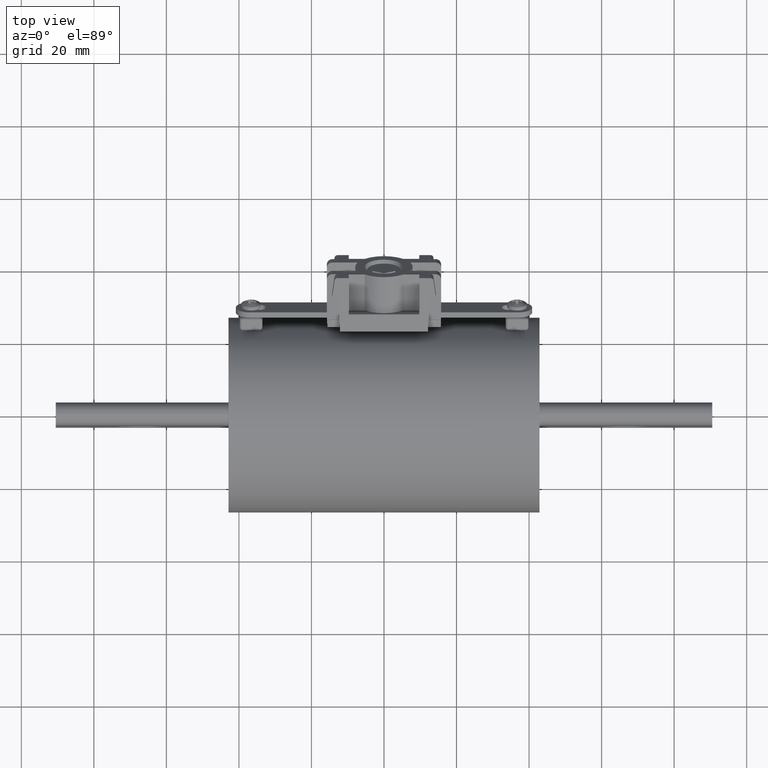
[diagram: clean part render]
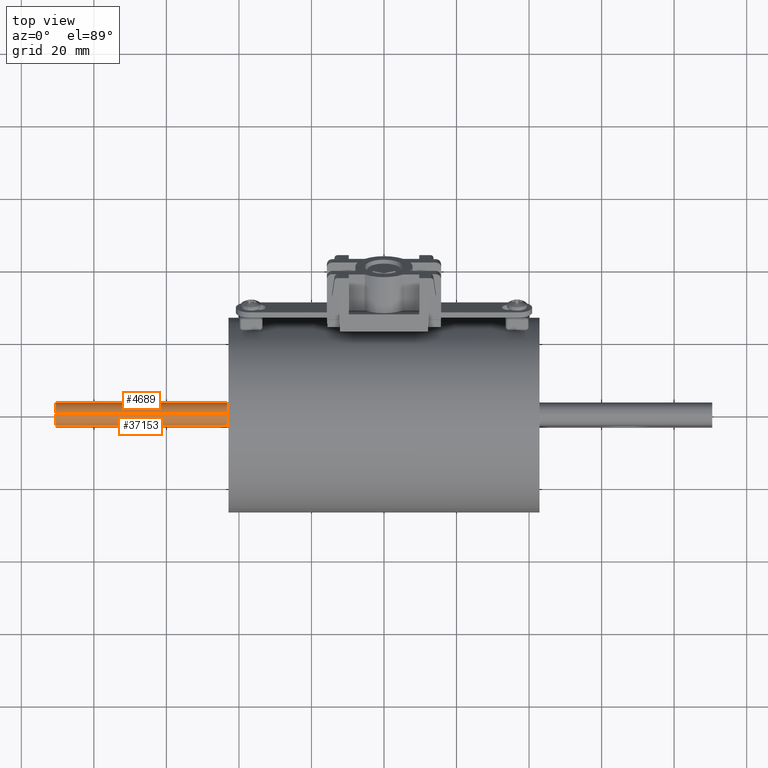
[diagram: same view with one multi-face feature highlighted, each face labeled with its STEP entity id]
A machine part, top view. The highlighted faces form ONE feature: a constant-radius fillet chain: 2 tangent blend faces with common blend radius 3.175 mm. The faces share edges in the B-rep.
Their STEP definitions:
[1] entity #4689 (Cylinder):
#1076 = EDGE_CURVE ( 'NONE', #24107, #13999, #19981, .T. ) ;
#1146 = FACE_OUTER_BOUND ( 'NONE', #10984, .T. ) ;
#2619 = VECTOR ( 'NONE', #30728, 39.37007874015748100 ) ;
#4689 = ADVANCED_FACE ( 'NONE', ( #1146 ), #29141, .T. ) ;
#5760 = CARTESIAN_POINT ( 'NONE',  ( -3.562500000000000000, -1.214542904205320800E-016, 0.6874999999999990000 ) ) ;
#7061 = CARTESIAN_POINT ( 'NONE',  ( -3.562500000000000000, -1.214542904205320800E-016, 0.8124999999999990000 ) ) ;
#7563 = CIRCLE ( 'NONE', #29083, 0.1250000000000000000 ) ;
#8238 = DIRECTION ( 'NONE',  ( 1.000000000000000000, -1.190086841554902200E-017, 1.160211756283973200E-016 ) ) ;
#8290 = AXIS2_PLACEMENT_3D ( 'NONE', #5760, #17113, #39814 ) ;
#9882 = EDGE_CURVE ( 'NONE', #13999, #13333, #38259, .T. ) ;
#10984 = EDGE_LOOP ( 'NONE', ( #12993, #34528, #30290, #39913 ) ) ;
#12709 = CARTESIAN_POINT ( 'NONE',  ( -1.562500000000000000, -1.452560272516301400E-016, 0.8125000000000000000 ) ) ;
#12993 = ORIENTED_EDGE ( 'NONE', *, *, #1076, .F. ) ;
#13333 = VERTEX_POINT ( 'NONE', #38377 ) ;
#13999 = VERTEX_POINT ( 'NONE', #16949 ) ;
#14133 = AXIS2_PLACEMENT_3D ( 'NONE', #36540, #34086, #34184 ) ;
#16949 = CARTESIAN_POINT ( 'NONE',  ( -3.562500000000000000, 0.1249999999999998800, 0.6874999999999991100 ) ) ;
#17113 = DIRECTION ( 'NONE',  ( -1.000000000000000000, 1.190086841554902200E-017, -1.160211756283973200E-016 ) ) ;
#17482 = EDGE_CURVE ( 'NONE', #13333, #35228, #7563, .T. ) ;
#19920 = LINE ( 'NONE', #29533, #27808 ) ;
#19981 = CIRCLE ( 'NONE', #8290, 0.1250000000000000000 ) ;
#24107 = VERTEX_POINT ( 'NONE', #7061 ) ;
#27808 = VECTOR ( 'NONE', #36256, 39.37007874015748100 ) ;
#28268 = CARTESIAN_POINT ( 'NONE',  ( -1.562500000000000000, -1.452560272516301400E-016, 0.6875000000000000000 ) ) ;
#29083 = AXIS2_PLACEMENT_3D ( 'NONE', #28268, #8238, #31664 ) ;
#29141 = CYLINDRICAL_SURFACE ( 'NONE', #14133, 0.1250000000000000300 ) ;
#29533 = CARTESIAN_POINT ( 'NONE',  ( -1.562500000000000000, -1.452560272516301400E-016, 0.8125000000000000000 ) ) ;
#30290 = ORIENTED_EDGE ( 'NONE', *, *, #17482, .F. ) ;
#30685 = CARTESIAN_POINT ( 'NONE',  ( -1.562500000000000000, 0.1249999999999998500, 0.6875000000000000000 ) ) ;
#30728 = DIRECTION ( 'NONE',  ( 1.000000000000000000, -1.190086841554902200E-017, 4.575021748364302300E-016 ) ) ;
#31664 = DIRECTION ( 'NONE',  ( 0.0000000000000000000, 1.000000000000000000, 0.0000000000000000000 ) ) ;
#34086 = DIRECTION ( 'NONE',  ( 1.000000000000000000, -1.190086841554902200E-017, 4.575021748364302300E-016 ) ) ;
#34184 = DIRECTION ( 'NONE',  ( 0.0000000000000000000, 0.0000000000000000000, -1.000000000000000000 ) ) ;
#34528 = ORIENTED_EDGE ( 'NONE', *, *, #36376, .T. ) ;
#35228 = VERTEX_POINT ( 'NONE', #12709 ) ;
#36256 = DIRECTION ( 'NONE',  ( 1.000000000000000000, -1.190086841554902200E-017, 4.575021748364302300E-016 ) ) ;
#36376 = EDGE_CURVE ( 'NONE', #24107, #35228, #19920, .T. ) ;
#36540 = CARTESIAN_POINT ( 'NONE',  ( -1.562500000000000000, -1.452560272516301400E-016, 0.6875000000000000000 ) ) ;
#38259 = LINE ( 'NONE', #30685, #2619 ) ;
#38377 = CARTESIAN_POINT ( 'NONE',  ( -1.562500000000000000, 0.1249999999999998500, 0.6874999999999998900 ) ) ;
#39814 = DIRECTION ( 'NONE',  ( 0.0000000000000000000, -1.000000000000000000, 0.0000000000000000000 ) ) ;
#39913 = ORIENTED_EDGE ( 'NONE', *, *, #9882, .F. ) ;
[2] entity #37153 (Cylinder):
#700 = CARTESIAN_POINT ( 'NONE',  ( -1.562500000000000000, -0.1250000000000001400, 0.6874999999999998900 ) ) ;
#1932 = VERTEX_POINT ( 'NONE', #24028 ) ;
#2387 = EDGE_LOOP ( 'NONE', ( #16977, #32867, #33737, #26449 ) ) ;
#2982 = AXIS2_PLACEMENT_3D ( 'NONE', #37004, #16966, #40374 ) ;
#6215 = CARTESIAN_POINT ( 'NONE',  ( -3.562500000000000000, -1.214542904205320800E-016, 0.6874999999999990000 ) ) ;
#7061 = CARTESIAN_POINT ( 'NONE',  ( -3.562500000000000000, -1.214542904205320800E-016, 0.8124999999999990000 ) ) ;
#7098 = EDGE_CURVE ( 'NONE', #1932, #24107, #12005, .T. ) ;
#8888 = CYLINDRICAL_SURFACE ( 'NONE', #16566, 0.1250000000000000300 ) ;
#9938 = EDGE_CURVE ( 'NONE', #24402, #1932, #14165, .T. ) ;
#12005 = CIRCLE ( 'NONE', #31631, 0.1250000000000000000 ) ;
#12709 = CARTESIAN_POINT ( 'NONE',  ( -1.562500000000000000, -1.452560272516301400E-016, 0.8125000000000000000 ) ) ;
#12839 = CARTESIAN_POINT ( 'NONE',  ( -1.562500000000000000, -1.452560272516301400E-016, 0.6875000000000000000 ) ) ;
#14165 = LINE ( 'NONE', #29799, #27259 ) ;
#16566 = AXIS2_PLACEMENT_3D ( 'NONE', #12839, #39727, #43186 ) ;
#16966 = DIRECTION ( 'NONE',  ( 1.000000000000000000, -1.190086841554902200E-017, 1.160211756283973200E-016 ) ) ;
#16977 = ORIENTED_EDGE ( 'NONE', *, *, #36376, .F. ) ;
#19920 = LINE ( 'NONE', #29533, #27808 ) ;
#22353 = CIRCLE ( 'NONE', #2982, 0.1250000000000000000 ) ;
#24028 = CARTESIAN_POINT ( 'NONE',  ( -3.562500000000000000, -0.1250000000000001100, 0.6874999999999991100 ) ) ;
#24107 = VERTEX_POINT ( 'NONE', #7061 ) ;
#24402 = VERTEX_POINT ( 'NONE', #700 ) ;
#26449 = ORIENTED_EDGE ( 'NONE', *, *, #30587, .F. ) ;
#27259 = VECTOR ( 'NONE', #31294, 39.37007874015748100 ) ;
#27808 = VECTOR ( 'NONE', #36256, 39.37007874015748100 ) ;
#29533 = CARTESIAN_POINT ( 'NONE',  ( -1.562500000000000000, -1.452560272516301400E-016, 0.8125000000000000000 ) ) ;
#29799 = CARTESIAN_POINT ( 'NONE',  ( -3.562500000000000000, -0.1250000000000001100, 0.6874999999999990000 ) ) ;
#30587 = EDGE_CURVE ( 'NONE', #35228, #24402, #22353, .T. ) ;
#30911 = FACE_OUTER_BOUND ( 'NONE', #2387, .T. ) ;
#31294 = DIRECTION ( 'NONE',  ( -1.000000000000000000, 1.190086841554902200E-017, -4.575021748364302300E-016 ) ) ;
#31631 = AXIS2_PLACEMENT_3D ( 'NONE', #6215, #33974, #41262 ) ;
#32867 = ORIENTED_EDGE ( 'NONE', *, *, #7098, .F. ) ;
#33737 = ORIENTED_EDGE ( 'NONE', *, *, #9938, .F. ) ;
#33974 = DIRECTION ( 'NONE',  ( -1.000000000000000000, 1.190086841554902200E-017, -1.160211756283973200E-016 ) ) ;
#35228 = VERTEX_POINT ( 'NONE', #12709 ) ;
#36256 = DIRECTION ( 'NONE',  ( 1.000000000000000000, -1.190086841554902200E-017, 4.575021748364302300E-016 ) ) ;
#36376 = EDGE_CURVE ( 'NONE', #24107, #35228, #19920, .T. ) ;
#37004 = CARTESIAN_POINT ( 'NONE',  ( -1.562500000000000000, -1.452560272516301400E-016, 0.6875000000000000000 ) ) ;
#37153 = ADVANCED_FACE ( 'NONE', ( #30911 ), #8888, .T. ) ;
#39727 = DIRECTION ( 'NONE',  ( -1.000000000000000000, 1.190086841554902200E-017, -4.575021748364302300E-016 ) ) ;
#40374 = DIRECTION ( 'NONE',  ( 0.0000000000000000000, 1.000000000000000000, 0.0000000000000000000 ) ) ;
#41262 = DIRECTION ( 'NONE',  ( 0.0000000000000000000, -1.000000000000000000, 0.0000000000000000000 ) ) ;
#43186 = DIRECTION ( 'NONE',  ( 0.0000000000000000000, 0.0000000000000000000, 1.000000000000000000 ) ) ;